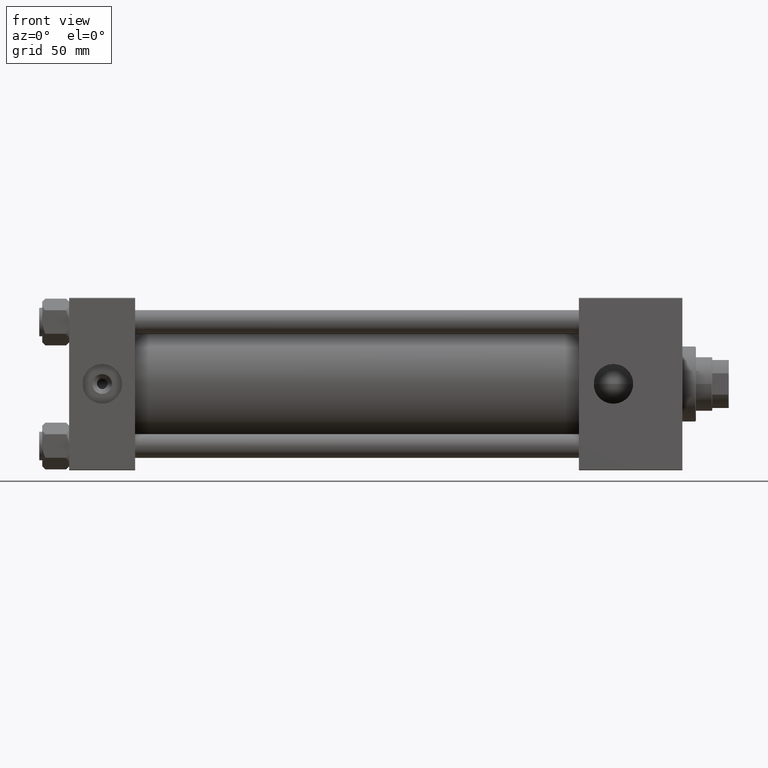
[diagram: clean part render]
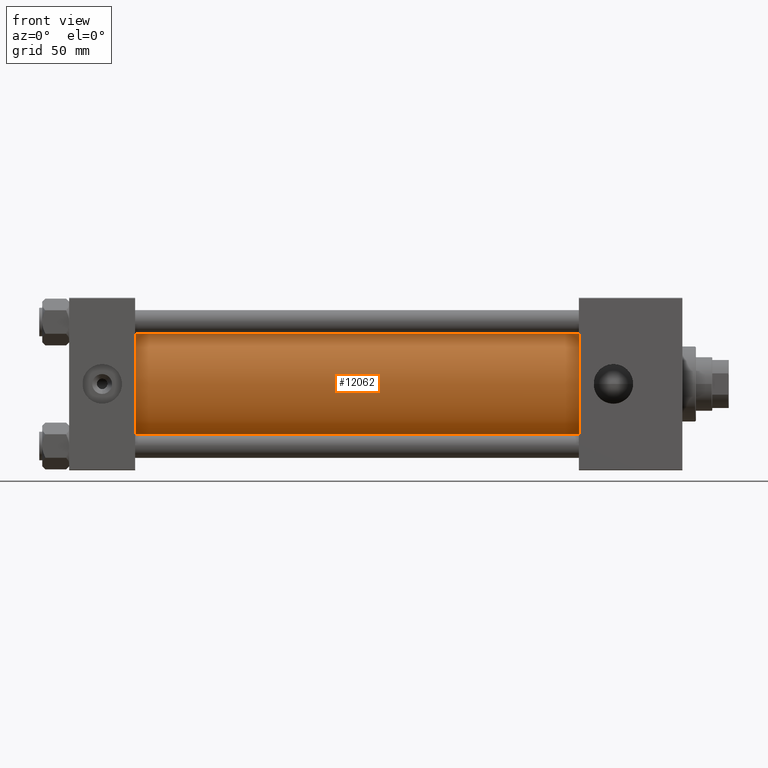
[diagram: same view with one face highlighted and labeled with its STEP entity id]
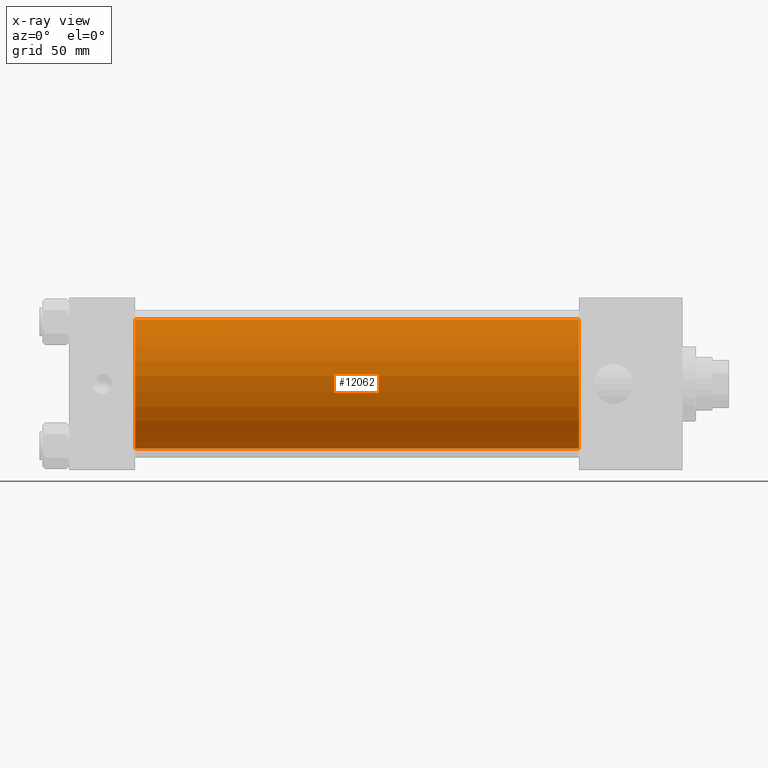
[diagram: x-ray of the same camera — body ghosted, the highlighted face saturated]
A machine part, front view. The second image highlights one B-rep face of the part: STEP entity #12062.
The next image is the same camera in x-ray: the body ghosted, the highlighted face saturated — about 0% of this face is hidden behind the body in this view.
In plain terms, the highlighted cylindrical surface (partial cylindrical patch) has radius 43 mm, axis along (-1, -0, -0).
Its self-contained STEP definition (entity closure, byte-faithful):
#1730 = AXIS2_PLACEMENT_3D ( 'NONE', #36448, #21004, #21531 ) ;
#3482 = ORIENTED_EDGE ( 'NONE', *, *, #18223, .T. ) ;
#5020 = DIRECTION ( 'NONE',  ( -1.000000000000000000, -0.000000000000000000, -0.000000000000000000 ) ) ;
#5833 = CARTESIAN_POINT ( 'NONE',  ( 339.9999999999999432, 2.663896022368408223E-15, -43.00000000000000000 ) ) ;
#5950 = DIRECTION ( 'NONE',  ( 1.000000000000000000, 0.000000000000000000, 0.000000000000000000 ) ) ;
#6186 = ORIENTED_EDGE ( 'NONE', *, *, #9927, .T. ) ;
#9486 = CARTESIAN_POINT ( 'NONE',  ( 43.99999999999998579, 2.663896022368408223E-15, -43.00000000000000000 ) ) ;
#9695 = AXIS2_PLACEMENT_3D ( 'NONE', #24195, #31676, #16253 ) ;
#9927 = EDGE_CURVE ( 'NONE', #31900, #16931, #43144, .T. ) ;
#12062 = ADVANCED_FACE ( 'NONE', ( #32424 ), #44508, .T. ) ;
#15245 = ORIENTED_EDGE ( 'NONE', *, *, #44255, .F. ) ;
#16253 = DIRECTION ( 'NONE',  ( 0.000000000000000000, 0.000000000000000000, 1.000000000000000000 ) ) ;
#16931 = VERTEX_POINT ( 'NONE', #47545 ) ;
#18223 = EDGE_CURVE ( 'NONE', #16931, #26468, #32057, .T. ) ;
#19502 = CARTESIAN_POINT ( 'NONE',  ( 339.9999999999999432, -2.602085213965210642E-15, 43.00000000000000000 ) ) ;
#21004 = DIRECTION ( 'NONE',  ( 1.000000000000000000, -0.000000000000000000, 0.000000000000000000 ) ) ;
#21492 = DIRECTION ( 'NONE',  ( -1.000000000000000000, -0.000000000000000000, -0.000000000000000000 ) ) ;
#21531 = DIRECTION ( 'NONE',  ( 0.000000000000000000, 0.000000000000000000, 1.000000000000000000 ) ) ;
#21608 = DIRECTION ( 'NONE',  ( 0.000000000000000000, 0.000000000000000000, -1.000000000000000000 ) ) ;
#23540 = VECTOR ( 'NONE', #5020, 1000.000000000000000 ) ;
#24195 = CARTESIAN_POINT ( 'NONE',  ( 339.9999999999999432, -2.602085213965210642E-15, 0.000000000000000000 ) ) ;
#26262 = EDGE_CURVE ( 'NONE', #31900, #31278, #39615, .T. ) ;
#26468 = VERTEX_POINT ( 'NONE', #9486 ) ;
#27180 = EDGE_LOOP ( 'NONE', ( #15245, #45316, #6186, #3482 ) ) ;
#28616 = CARTESIAN_POINT ( 'NONE',  ( 339.9999999999999432, 2.663896022368408223E-15, -43.00000000000000000 ) ) ;
#31278 = VERTEX_POINT ( 'NONE', #28616 ) ;
#31318 = VECTOR ( 'NONE', #21492, 1000.000000000000000 ) ;
#31411 = AXIS2_PLACEMENT_3D ( 'NONE', #45260, #5950, #21608 ) ;
#31676 = DIRECTION ( 'NONE',  ( -1.000000000000000000, -0.000000000000000000, -0.000000000000000000 ) ) ;
#31900 = VERTEX_POINT ( 'NONE', #33913 ) ;
#32057 = CIRCLE ( 'NONE', #1730, 43.00000000000000000 ) ;
#32424 = FACE_OUTER_BOUND ( 'NONE', #27180, .T. ) ;
#33913 = CARTESIAN_POINT ( 'NONE',  ( 339.9999999999999432, -2.602085213965210642E-15, 43.00000000000000000 ) ) ;
#36448 = CARTESIAN_POINT ( 'NONE',  ( 43.99999999999998579, -2.602085213965210642E-15, 0.000000000000000000 ) ) ;
#39615 = CIRCLE ( 'NONE', #31411, 43.00000000000000000 ) ;
#43144 = LINE ( 'NONE', #19502, #23540 ) ;
#44255 = EDGE_CURVE ( 'NONE', #31278, #26468, #44881, .T. ) ;
#44508 = CYLINDRICAL_SURFACE ( 'NONE', #9695, 43.00000000000000000 ) ;
#44881 = LINE ( 'NONE', #5833, #31318 ) ;
#45260 = CARTESIAN_POINT ( 'NONE',  ( 339.9999999999999432, -2.602085213965210642E-15, 0.000000000000000000 ) ) ;
#45316 = ORIENTED_EDGE ( 'NONE', *, *, #26262, .F. ) ;
#47545 = CARTESIAN_POINT ( 'NONE',  ( 43.99999999999998579, -2.602085213965210642E-15, 43.00000000000000000 ) ) ;